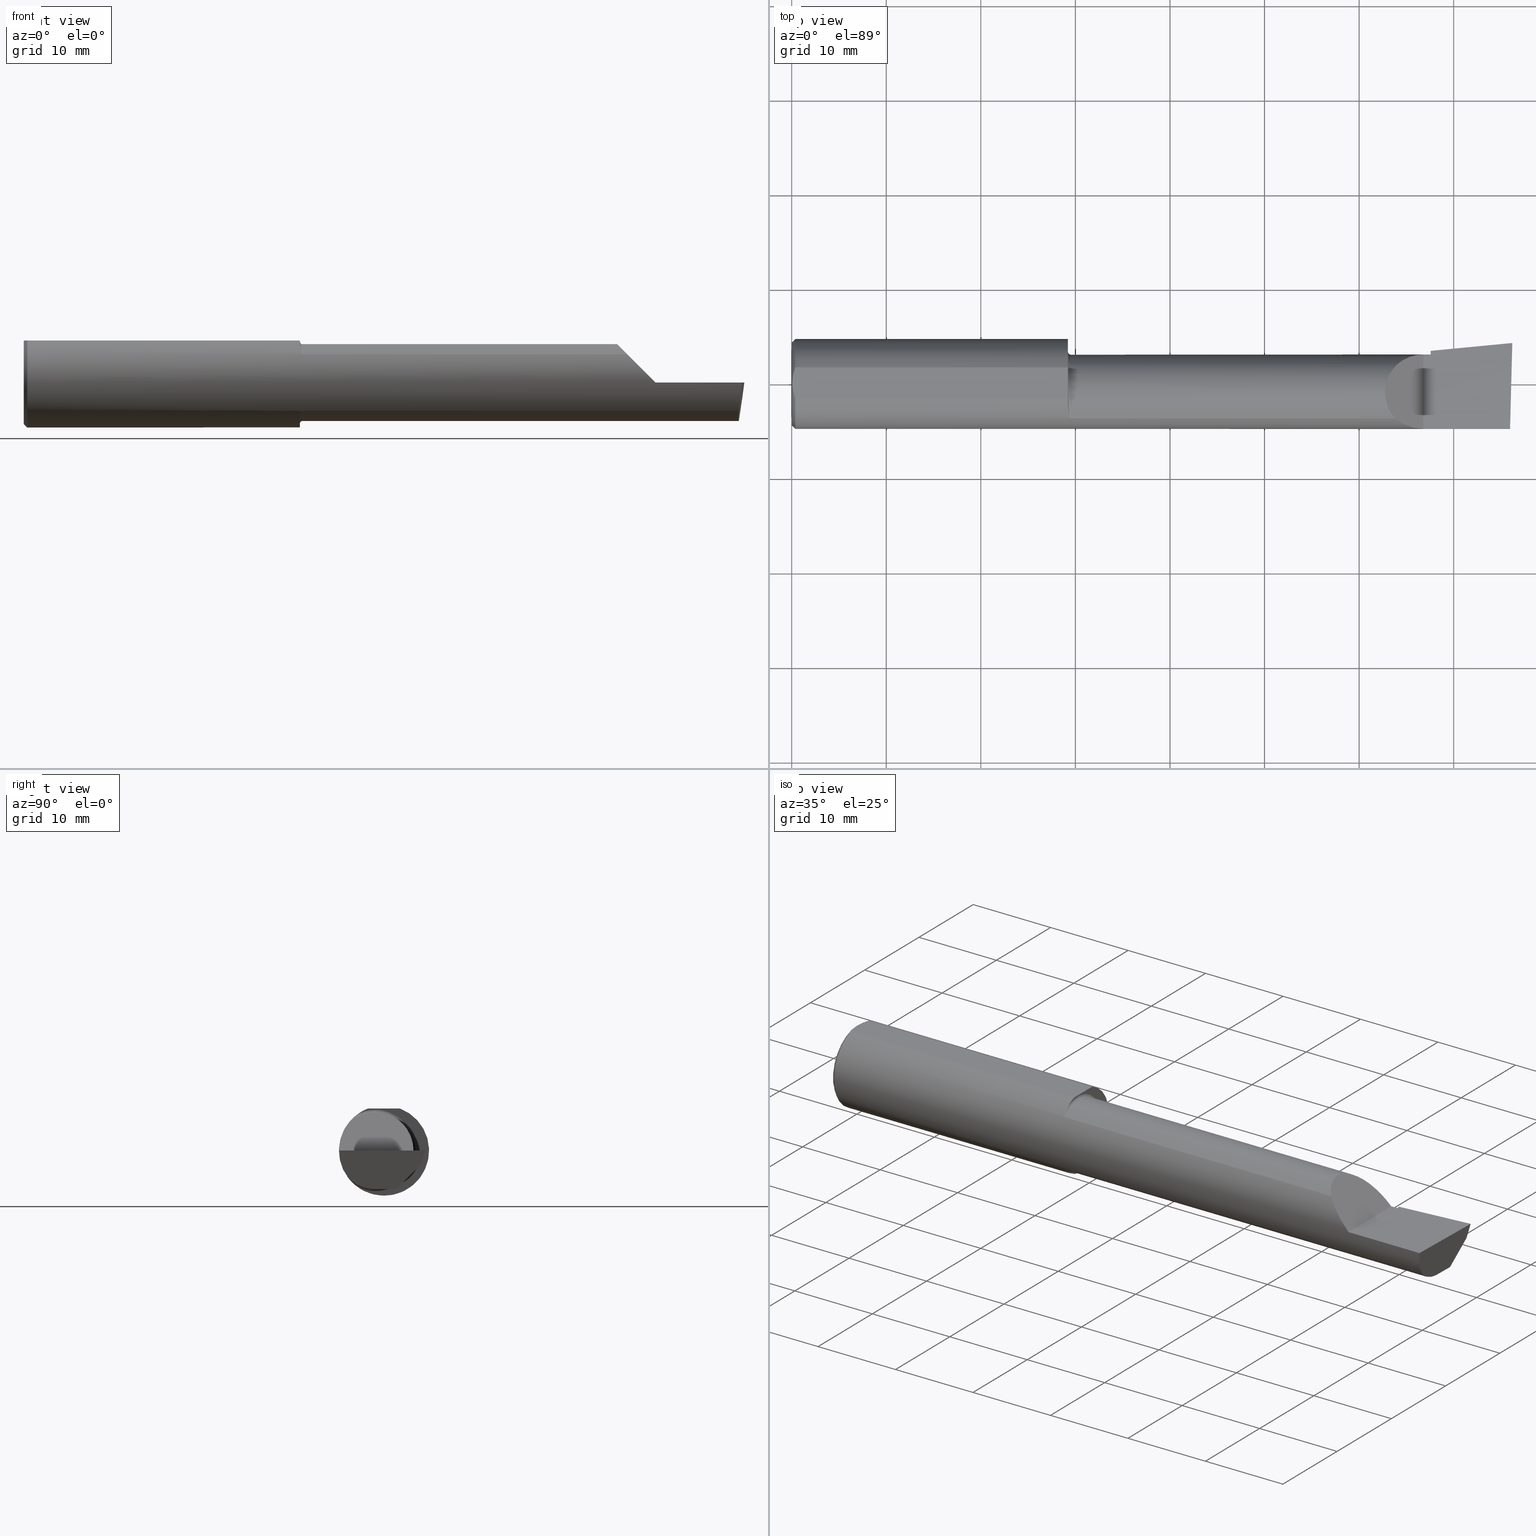
[diagram: canonical four-view strip — front | top / right | iso, engineering-drawing reading convention]
A machine part, canonical four-view strip (front | top / right | iso — engineering-drawing reading convention). The complete STEP part file that produces these views, byte-faithful:
ISO-10303-21;
HEADER;
FILE_DESCRIPTION (( 'STEP AP203' ),
    '1' );
FILE_NAME ('217534-B3601800.STEP',
    '2024-04-26T22:33:33',
    ( '' ),
    ( '' ),
    'SwSTEP 2.0',
    'SolidWorks 2022',
    '' );
FILE_SCHEMA (( 'CONFIG_CONTROL_DESIGN' ));
ENDSEC;

DATA;
#1 = CARTESIAN_POINT ( 'NONE',  ( 2.973833329693936545, -0.07789060880782658347, -0.1600499999999999146 ) ) ;
#2 = CIRCLE ( 'NONE', #478, 0.1600499999999999146 ) ;
#3 = EDGE_LOOP ( 'NONE', ( #440, #95, #236, #605, #196 ) ) ;
#4 = CARTESIAN_POINT ( 'NONE',  ( 0.01499999999999999424, 0.000000000000000000, 0.000000000000000000 ) ) ;
#5 = B_SPLINE_CURVE_WITH_KNOTS ( 'NONE', 3,
 ( #565, #140, #30, #34, #359, #465, #229, #321, #415, #214, #185, #450, #136, #560 ),
 .UNSPECIFIED., .F., .F.,
 ( 4, 2, 2, 2, 2, 2, 4 ),
 ( 0.0006605532644857246925, 0.001446564801351223669, 0.001839570569783973699, 0.002036073454000349690, 0.002134324896108538011, 0.002183450617162631738, 0.002232576338216725898 ),
 .UNSPECIFIED. ) ;
#6 = CARTESIAN_POINT ( 'NONE',  ( 2.992127980275564259, 0.1514633278254527426, -0.06000000000000001166 ) ) ;
#7 = EDGE_CURVE ( 'NONE', #287, #353, #276, .T. ) ;
#8 = ORIENTED_EDGE ( 'NONE', *, *, #434, .F. ) ;
#9 = CARTESIAN_POINT ( 'NONE',  ( 2.991169618080469661, 0.05430702260361124772, -0.1600499999999999701 ) ) ;
#10 = CIRCLE ( 'NONE', #109, 0.1600500000000000533 ) ;
#11 = EDGE_LOOP ( 'NONE', ( #8, #227, #442, #397 ) ) ;
#12 = CARTESIAN_POINT ( 'NONE',  ( 1.154992410154055626, -0.1399157128067689548, -0.1246181391956558832 ) ) ;
#13 = CLOSED_SHELL ( 'NONE', ( #195, #294, #123, #574, #619, #338, #506, #569, #330, #604, #147, #159, #385, #83, #457, #170, #74 ) ) ;
#14 = ORIENTED_EDGE ( 'NONE', *, *, #364, .F. ) ;
#15 = DIRECTION ( 'NONE',  ( 0.000000000000000000, 0.000000000000000000, 1.000000000000000000 ) ) ;
#16 = EDGE_CURVE ( 'NONE', #204, #550, #150, .T. ) ;
#17 = ORIENTED_EDGE ( 'NONE', *, *, #105, .T. ) ;
#18 = CARTESIAN_POINT ( 'NONE',  ( 2.629999999999999893, -0.2500000000000000555, -1.592040838891560883E-17 ) ) ;
#19 = FACE_OUTER_BOUND ( 'NONE', #256, .T. ) ;
#20 = VECTOR ( 'NONE', #51, 39.37007874015748143 ) ;
#21 = VERTEX_POINT ( 'NONE', #183 ) ;
#22 = DIRECTION ( 'NONE',  ( -1.415561931153809475E-16, 0.000000000000000000, -1.000000000000000000 ) ) ;
#23 = CARTESIAN_POINT ( 'NONE',  ( 2.992483720199184294, 0.1538199878950239352, -0.05760614975163617230 ) ) ;
#24 = APPROVAL ( #50, 'UNSPECIFIED' ) ;
#25 = EDGE_LOOP ( 'NONE', ( #349, #536, #314, #200 ) ) ;
#26 = CARTESIAN_POINT ( 'NONE',  ( 0.000000000000000000, 0.000000000000000000, 0.000000000000000000 ) ) ;
#27 = CARTESIAN_POINT ( 'NONE',  ( 2.985293537526806595, -0.1873499999999999888, -0.04340998088356423645 ) ) ;
#28 = ORIENTED_EDGE ( 'NONE', *, *, #525, .T. ) ;
#29 = LENGTH_MEASURE_WITH_UNIT ( LENGTH_MEASURE( 0.02539999999999999897 ), #130 );
#30 = CARTESIAN_POINT ( 'NONE',  ( 1.150493306168247853, -0.1180879943980271130, 0.1458023451353276934 ) ) ;
#31 = ORIENTED_EDGE ( 'NONE', *, *, #451, .F. ) ;
#32 = CARTESIAN_POINT ( 'NONE',  ( 2.659999999999999698, 0.02241901528670498314, -0.1600499999999999701 ) ) ;
#33 = VECTOR ( 'NONE', #284, 39.37007874015748854 ) ;
#34 = CARTESIAN_POINT ( 'NONE',  ( 1.152149571221040114, -0.1293863363941691047, 0.1355911774285935012 ) ) ;
#35 = AXIS2_PLACEMENT_3D ( 'NONE', #396, #112, #298 ) ;
#36 = AXIS2_PLACEMENT_3D ( 'NONE', #274, #264, #178 ) ;
#37 = EDGE_CURVE ( 'NONE', #395, #594, #624, .T. ) ;
#38 = DIRECTION ( 'NONE',  ( 1.000000000000000000, 0.000000000000000000, 0.000000000000000000 ) ) ;
#39 = PERSON_AND_ORGANIZATION ( #305, #333 ) ;
#40 = CARTESIAN_POINT ( 'NONE',  ( 1.160000000000000142, -0.03739999999999999575, 0.000000000000000000 ) ) ;
#41 = EDGE_CURVE ( 'NONE', #499, #21, #578, .T. ) ;
#42 = ORIENTED_EDGE ( 'NONE', *, *, #580, .T. ) ;
#43 = APPROVAL_ROLE ( '' ) ;
#44 = DIRECTION ( 'NONE',  ( -1.000000000000000000, -0.000000000000000000, -0.000000000000000000 ) ) ;
#45 = ORIENTED_EDGE ( 'NONE', *, *, #56, .T. ) ;
#46 = DATE_AND_TIME ( #243, #497 ) ;
#47 = LINE ( 'NONE', #197, #118 ) ;
#48 = LOCAL_TIME ( 15, 33, 33.00000000000000000, #90 ) ;
#49 = ORIENTED_EDGE ( 'NONE', *, *, #199, .T. ) ;
#50 = APPROVAL_STATUS ( 'not_yet_approved' ) ;
#51 = DIRECTION ( 'NONE',  ( -1.000000000000000000, 5.691349986800548372E-18, -0.000000000000000000 ) ) ;
#52 = COORDINATED_UNIVERSAL_TIME_OFFSET ( 8, 0, .BEHIND. ) ;
#53 = CARTESIAN_POINT ( 'NONE',  ( 0.01499999999999997863, -0.06597272163553657975, 0.1753499999999999781 ) ) ;
#54 = ORIENTED_EDGE ( 'NONE', *, *, #494, .F. ) ;
#55 = LINE ( 'NONE', #436, #570 ) ;
#56 = EDGE_CURVE ( 'NONE', #550, #360, #102, .T. ) ;
#57 = AXIS2_PLACEMENT_3D ( 'NONE', #504, #453, #125 ) ;
#58 = MANIFOLD_SOLID_BREP ( 'Extrude7', #13 ) ;
#59 = ORIENTED_EDGE ( 'NONE', *, *, #7, .T. ) ;
#60 = DIRECTION ( 'NONE',  ( -1.000000000000000000, -0.000000000000000000, -0.000000000000000000 ) ) ;
#61 = DIRECTION ( 'NONE',  ( -0.09165774897393340337, 0.9519021185660614393, -0.2923717047227301080 ) ) ;
#62 = DIRECTION ( 'NONE',  ( -1.000000000000000000, 5.691349986800549142E-18, -0.000000000000000000 ) ) ;
#63 = CARTESIAN_POINT ( 'NONE',  ( 1.150000000000000133, -0.1013606951871667550, -0.1575627873933888867 ) ) ;
#64 = AXIS2_PLACEMENT_3D ( 'NONE', #107, #62, #104 ) ;
#65 = VECTOR ( 'NONE', #80, 39.37007874015748143 ) ;
#66 = ORIENTED_EDGE ( 'NONE', *, *, #190, .F. ) ;
#67 = CARTESIAN_POINT ( 'NONE',  ( 2.659999999999999698, 0.1346188438362105333, -0.01072093908174517711 ) ) ;
#68 = ORIENTED_EDGE ( 'NONE', *, *, #139, .F. ) ;
#69 = FACE_OUTER_BOUND ( 'NONE', #25, .T. ) ;
#70 = CARTESIAN_POINT ( 'NONE',  ( 2.629999999999999893, 0.1226499999999998147, -1.592040838891560883E-17 ) ) ;
#71 = ORIENTED_EDGE ( 'NONE', *, *, #175, .F. ) ;
#72 = FACE_OUTER_BOUND ( 'NONE', #512, .T. ) ;
#73 = CARTESIAN_POINT ( 'NONE',  ( 3.000000000000015543, 0.1706500000000299999, 9.286389026041013029E-14 ) ) ;
#74 = ADVANCED_FACE ( 'NONE', ( #326 ), #585, .F. ) ;
#75 = CIRCLE ( 'NONE', #423, 0.1723499999999996424 ) ;
#76 = VERTEX_POINT ( 'NONE', #164 ) ;
#77 = FACE_OUTER_BOUND ( 'NONE', #472, .T. ) ;
#78 = CARTESIAN_POINT ( 'NONE',  ( 2.659999999999999698, -0.03740000000000000269, 0.000000000000000000 ) ) ;
#79 = ORIENTED_EDGE ( 'NONE', *, *, #614, .F. ) ;
#80 = DIRECTION ( 'NONE',  ( 0.9953961983671787417, 0.09584575252022456415, -1.409044964823803883E-16 ) ) ;
#81 = LINE ( 'NONE', #365, #546 ) ;
#82 = CARTESIAN_POINT ( 'NONE',  ( 2.990625440078235275, -0.1873499999999999888, -6.696573958807120429E-17 ) ) ;
#83 = ADVANCED_FACE ( 'NONE', ( #202 ), #386, .T. ) ;
#84 = VERTEX_POINT ( 'NONE', #603 ) ;
#85 = PERSON_AND_ORGANIZATION_ROLE ( 'design_supplier' ) ;
#86 = LINE ( 'NONE', #552, #207 ) ;
#87 = AXIS2_PLACEMENT_3D ( 'NONE', #456, #398, #350 ) ;
#88 = EDGE_CURVE ( 'NONE', #395, #452, #462, .T. ) ;
#89 = ORIENTED_EDGE ( 'NONE', *, *, #494, .T. ) ;
#90 = COORDINATED_UNIVERSAL_TIME_OFFSET ( 8, 0, .BEHIND. ) ;
#91 = FACE_OUTER_BOUND ( 'NONE', #209, .T. ) ;
#92 = CARTESIAN_POINT ( 'NONE',  ( 2.511965325165093521, -0.1454917112299465853, 0.1180346748349052760 ) ) ;
#93 = PERSON_AND_ORGANIZATION_ROLE ( 'classification_officer' ) ;
#94 = FACE_OUTER_BOUND ( 'NONE', #3, .T. ) ;
#95 = ORIENTED_EDGE ( 'NONE', *, *, #7, .F. ) ;
#96 = PERSON_AND_ORGANIZATION ( #305, #333 ) ;
#97 = LINE ( 'NONE', #289, #20 ) ;
#98 = VECTOR ( 'NONE', #414, 39.37007874015748143 ) ;
#99 = AXIS2_PLACEMENT_3D ( 'NONE', #40, #471, #192 ) ;
#100 = APPROVAL_ROLE ( '' ) ;
#101 = CARTESIAN_POINT ( 'NONE',  ( 0.008244775919947433529, 0.04453482769755864185, 0.1753499999999999504 ) ) ;
#102 =( BOUNDED_CURVE ( )  B_SPLINE_CURVE ( 3, ( #242, #119, #501, #70 ),
 .UNSPECIFIED., .F., .T. ) 
 B_SPLINE_CURVE_WITH_KNOTS ( ( 4, 4 ),
 ( 5.541729662751385455, 7.853981633974482790 ),
 .UNSPECIFIED. ) 
 CURVE ( )  GEOMETRIC_REPRESENTATION_ITEM ( )  RATIONAL_B_SPLINE_CURVE ( ( 1.000000000000000000, 0.6019254882129718709, 0.6019254882129718709, 1.000000000000000000 ) ) 
 REPRESENTATION_ITEM ( '' )  );
#103 = B_SPLINE_CURVE_WITH_KNOTS ( 'NONE', 3,
 ( #388, #205, #346, #543, #394, #297, #584, #12, #292, #163, #384, #339, #111, #63 ),
 .UNSPECIFIED., .F., .F.,
 ( 4, 2, 2, 2, 2, 2, 4 ),
 ( 1.967643395620002325E-07, 5.001319782656137654E-05, 9.982963131356075023E-05, 0.0001994624982875594840, 0.0003987282322355602585, 0.0007972597001315618074, 0.001594322635923565989 ),
 .UNSPECIFIED. ) ;
#104 = DIRECTION ( 'NONE',  ( -5.691349986800548372E-18, -1.000000000000000000, 0.000000000000000000 ) ) ;
#105 = EDGE_CURVE ( 'NONE', #21, #353, #115, .T. ) ;
#106 = ORIENTED_EDGE ( 'NONE', *, *, #553, .F. ) ;
#107 = CARTESIAN_POINT ( 'NONE',  ( 0.000000000000000000, -0.03739999999999998881, 0.000000000000000000 ) ) ;
#108 = EDGE_CURVE ( 'NONE', #499, #425, #5, .T. ) ;
#109 = AXIS2_PLACEMENT_3D ( 'NONE', #562, #464, #402 ) ;
#110 = ORIENTED_EDGE ( 'NONE', *, *, #16, .F. ) ;
#111 = CARTESIAN_POINT ( 'NONE',  ( 1.150000000000000355, -0.1099295023601660481, -0.1520504436074701926 ) ) ;
#112 = DIRECTION ( 'NONE',  ( -1.000000000000000000, -0.000000000000000000, -0.000000000000000000 ) ) ;
#113 = PRODUCT_RELATED_PRODUCT_CATEGORY ( 'detail', '', ( #273 ) ) ;
#114 = CARTESIAN_POINT ( 'NONE',  ( 3.011712141217648409, 0.1533490680423131858, -0.06000000000000001166 ) ) ;
#115 = CIRCLE ( 'NONE', #36, 0.1873499999999999888 ) ;
#116 = ORIENTED_EDGE ( 'NONE', *, *, #553, .T. ) ;
#117 = PLANE ( 'NONE',  #87 ) ;
#118 = VECTOR ( 'NONE', #367, 39.37007874015748143 ) ;
#119 = CARTESIAN_POINT ( 'NONE',  ( 2.402393788885675008, -0.02584108761840274437, 0.2276062111143224709 ) ) ;
#120 = ORIENTED_EDGE ( 'NONE', *, *, #218, .F. ) ;
#121 = FACE_OUTER_BOUND ( 'NONE', #611, .T. ) ;
#122 = DIRECTION ( 'NONE',  ( -1.000000000000000000, 5.691349986800549142E-18, 0.000000000000000000 ) ) ;
#123 = ADVANCED_FACE ( 'NONE', ( #308 ), #132, .T. ) ;
#124 = ORIENTED_EDGE ( 'NONE', *, *, #323, .T. ) ;
#125 = DIRECTION ( 'NONE',  ( 0.000000000000000000, 0.000000000000000000, -1.000000000000000000 ) ) ;
#126 =( BOUNDED_CURVE ( )  B_SPLINE_CURVE ( 3, ( #577, #372, #1, #332 ),
 .UNSPECIFIED., .F., .F. ) 
 B_SPLINE_CURVE_WITH_KNOTS ( ( 4, 4 ),
 ( 5.751779107031520510, 6.493234751459723064 ),
 .UNSPECIFIED. ) 
 CURVE ( )  GEOMETRIC_REPRESENTATION_ITEM ( )  RATIONAL_B_SPLINE_CURVE ( ( 1.000000000000000000, 0.9547092712975350226, 0.9547092712975350226, 1.000000000000000000 ) ) 
 REPRESENTATION_ITEM ( '' )  );
#127 = DIRECTION ( 'NONE',  ( 1.000000000000000000, 0.000000000000000000, 0.000000000000000000 ) ) ;
#128 = VECTOR ( 'NONE', #592, 39.37007874015748854 ) ;
#129 = ORIENTED_EDGE ( 'NONE', *, *, #403, .T. ) ;
#130 =( LENGTH_UNIT ( ) NAMED_UNIT ( * ) SI_UNIT ( $, .METRE. ) );
#131 = APPROVAL_PERSON_ORGANIZATION ( #377, #157, #475 ) ;
#132 = PLANE ( 'NONE',  #155 ) ;
#133 = VECTOR ( 'NONE', #246, 39.37007874015748854 ) ;
#134 = EDGE_LOOP ( 'NONE', ( #17, #42, #598, #469 ) ) ;
#135 = CARTESIAN_POINT ( 'NONE',  ( 2.977223734188810145, -0.1454917112299468074, -0.1180346748349050540 ) ) ;
#136 = CARTESIAN_POINT ( 'NONE',  ( 1.159343186359710121, -0.1454917112302233917, 0.1180346748345658947 ) ) ;
#137 = CC_DESIGN_DATE_AND_TIME_ASSIGNMENT ( #46, #288, ( #523 ) ) ;
#138 = ORIENTED_EDGE ( 'NONE', *, *, #299, .T. ) ;
#139 = EDGE_CURVE ( 'NONE', #425, #550, #86, .T. ) ;
#140 = CARTESIAN_POINT ( 'NONE',  ( 1.150000000000000133, -0.1100056335683322478, 0.1520014681335473961 ) ) ;
#141 = VERTEX_POINT ( 'NONE', #517 ) ;
#142 = AXIS2_PLACEMENT_3D ( 'NONE', #361, #454, #514 ) ;
#143 = ORIENTED_EDGE ( 'NONE', *, *, #538, .F. ) ;
#144 = PERSON_AND_ORGANIZATION ( #305, #333 ) ;
#145 = CC_DESIGN_PERSON_AND_ORGANIZATION_ASSIGNMENT ( #144, #430, ( #523 ) ) ;
#146 = DIRECTION ( 'NONE',  ( -1.000000000000000000, -0.000000000000000000, -0.000000000000000000 ) ) ;
#147 = ADVANCED_FACE ( 'NONE', ( #19 ), #466, .F. ) ;
#148 = APPROVAL_DATE_TIME ( #282, #157 ) ;
#149 = FACE_OUTER_BOUND ( 'NONE', #544, .T. ) ;
#150 =( BOUNDED_CURVE ( )  B_SPLINE_CURVE ( 3, ( #417, #572, #526, #92 ),
 .UNSPECIFIED., .F., .T. ) 
 B_SPLINE_CURVE_WITH_KNOTS ( ( 4, 4 ),
 ( 4.712388980384689674, 5.393970886271887366 ),
 .UNSPECIFIED. ) 
 CURVE ( )  GEOMETRIC_REPRESENTATION_ITEM ( )  RATIONAL_B_SPLINE_CURVE ( ( 1.000000000000000000, 0.9616603987079549443, 0.9616603987079549443, 1.000000000000000000 ) ) 
 REPRESENTATION_ITEM ( '' )  );
#151 = PERSON_AND_ORGANIZATION ( #305, #333 ) ;
#152 = CARTESIAN_POINT ( 'NONE',  ( 0.003000000000000172234, 0.01127363201155565098, 0.1753499999999999781 ) ) ;
#153 = AXIS2_PLACEMENT_3D ( 'NONE', #429, #335, #528 ) ;
#154 = CC_DESIGN_SECURITY_CLASSIFICATION ( #571, ( #301 ) ) ;
#155 = AXIS2_PLACEMENT_3D ( 'NONE', #182, #122, #411 ) ;
#156 = CARTESIAN_POINT ( 'NONE',  ( 0.003000000000000171800, -0.01126410975715119375, 0.1753500000000000059 ) ) ;
#157 = APPROVAL ( #324, 'UNSPECIFIED' ) ;
#158 = LINE ( 'NONE', #184, #540 ) ;
#159 = ADVANCED_FACE ( 'NONE', ( #399 ), #511, .T. ) ;
#160 = CARTESIAN_POINT ( 'NONE',  ( 3.000188977433814852, 0.1711105994646683337, 0.001440373173037440713 ) ) ;
#161 = VERTEX_POINT ( 'NONE', #171 ) ;
#162 = DIRECTION ( 'NONE',  ( 0.000000000000000000, 0.6963153109074925462, 0.7177360153954948085 ) ) ;
#163 = CARTESIAN_POINT ( 'NONE',  ( 1.152858161161656181, -0.1330631366558205908, -0.1319833113027339688 ) ) ;
#164 = CARTESIAN_POINT ( 'NONE',  ( 0.01499999999999999424, 0.000000000000000000, -0.1873499999999999888 ) ) ;
#165 = VERTEX_POINT ( 'NONE', #318 ) ;
#166 = CARTESIAN_POINT ( 'NONE',  ( 1.160000000000000142, -0.1454917112299473902, 0.1180346748349042768 ) ) ;
#167 = AXIS2_PLACEMENT_3D ( 'NONE', #174, #127, #508 ) ;
#168 = VERTEX_POINT ( 'NONE', #73 ) ;
#169 = DIRECTION ( 'NONE',  ( -0.000000000000000000, 1.000000000000000000, -0.000000000000000000 ) ) ;
#170 = ADVANCED_FACE ( 'NONE', ( #312 ), #355, .F. ) ;
#171 = CARTESIAN_POINT ( 'NONE',  ( 2.659999999999999698, -0.03740000000000000269, -0.1600499999999999701 ) ) ;
#172 = ORIENTED_EDGE ( 'NONE', *, *, #270, .T. ) ;
#173 = PLANE ( 'NONE',  #340 ) ;
#174 = CARTESIAN_POINT ( 'NONE',  ( 0.01499999999999999424, 0.000000000000000000, 0.000000000000000000 ) ) ;
#175 = EDGE_CURVE ( 'NONE', #541, #334, #374, .T. ) ;
#176 = ORIENTED_EDGE ( 'NONE', *, *, #323, .F. ) ;
#177 = FACE_OUTER_BOUND ( 'NONE', #393, .T. ) ;
#178 = DIRECTION ( 'NONE',  ( 0.000000000000000000, 1.000000000000000000, 0.000000000000000000 ) ) ;
#179 = AXIS2_PLACEMENT_3D ( 'NONE', #608, #351, #459 ) ;
#180 = ORIENTED_EDGE ( 'NONE', *, *, #291, .T. ) ;
#181 = DIRECTION ( 'NONE',  ( 0.02617694830787068924, 0.9996573249755572599, -3.650474420803454266E-18 ) ) ;
#182 = CARTESIAN_POINT ( 'NONE',  ( 2.659999999999999698, 0.1379117236128365731, 0.000000000000000000 ) ) ;
#183 = CARTESIAN_POINT ( 'NONE',  ( 1.150000000000000133, -0.1013606951871667550, -0.1575627873933888867 ) ) ;
#184 = CARTESIAN_POINT ( 'NONE',  ( 2.659999999999999698, -0.03740000000000000269, -0.1600499999999999701 ) ) ;
#185 = CARTESIAN_POINT ( 'NONE',  ( 1.157921033727479010, -0.1445976381173504355, 0.1191292621734205831 ) ) ;
#186 = CALENDAR_DATE ( 2024, 26, 4 ) ;
#187 = CARTESIAN_POINT ( 'NONE',  ( 0.01499999999999999424, 0.000000000000000000, 0.000000000000000000 ) ) ;
#188 = ORIENTED_EDGE ( 'NONE', *, *, #403, .F. ) ;
#189 = CARTESIAN_POINT ( 'NONE',  ( 2.659999999999999698, 0.1010446066476775734, -0.07900565447499385829 ) ) ;
#190 = EDGE_CURVE ( 'NONE', #486, #613, #81, .T. ) ;
#191 = DIRECTION ( 'NONE',  ( 0.000000000000000000, -1.000000000000000000, 0.000000000000000000 ) ) ;
#192 = DIRECTION ( 'NONE',  ( 0.000000000000000000, -1.000000000000000000, 0.000000000000000000 ) ) ;
#193 = APPLICATION_PROTOCOL_DEFINITION ( 'international standard', 'config_control_design', 1994, #241 ) ;
#194 = CARTESIAN_POINT ( 'NONE',  ( 1.150000000000000133, 0.06597272163553680180, 0.1753499999999999781 ) ) ;
#195 = ADVANCED_FACE ( 'NONE', ( #271 ), #435, .T. ) ;
#196 = ORIENTED_EDGE ( 'NONE', *, *, #211, .F. ) ;
#197 = CARTESIAN_POINT ( 'NONE',  ( 0.000000000000000000, -0.06597272163553671853, 0.1753499999999999226 ) ) ;
#198 = AXIS2_PLACEMENT_3D ( 'NONE', #597, #315, #505 ) ;
#199 = EDGE_CURVE ( 'NONE', #486, #161, #518, .T. ) ;
#200 = ORIENTED_EDGE ( 'NONE', *, *, #502, .T. ) ;
#201 = DIRECTION ( 'NONE',  ( 0.7071067811865390240, 0.000000000000000000, -0.7071067811865560104 ) ) ;
#202 = FACE_OUTER_BOUND ( 'NONE', #11, .T. ) ;
#203 = PLANE ( 'NONE',  #379 ) ;
#204 = VERTEX_POINT ( 'NONE', #407 ) ;
#205 = CARTESIAN_POINT ( 'NONE',  ( 1.159335809113331450, -0.1454917112299472515, -0.1180346748349044989 ) ) ;
#206 = VECTOR ( 'NONE', #169, 39.37007874015748143 ) ;
#207 = VECTOR ( 'NONE', #224, 39.37007874015748143 ) ;
#208 = LINE ( 'NONE', #160, #226 ) ;
#209 = EDGE_LOOP ( 'NONE', ( #138, #216, #413, #79 ) ) ;
#210 = DIRECTION ( 'NONE',  ( -0.06894566448119621160, 0.7160281025913034503, -0.6946583704589934793 ) ) ;
#211 = EDGE_CURVE ( 'NONE', #345, #141, #47, .T. ) ;
#212 = EDGE_LOOP ( 'NONE', ( #617, #180 ) ) ;
#213 = CARTESIAN_POINT ( 'NONE',  ( 1.150000000000000133, 0.2373500000000000332, 0.1753499999999999504 ) ) ;
#214 = CARTESIAN_POINT ( 'NONE',  ( 1.157580800664965714, -0.1442412736056278566, 0.1195608849622512987 ) ) ;
#215 = AXIS2_PLACEMENT_3D ( 'NONE', #4, #60, #15 ) ;
#216 = ORIENTED_EDGE ( 'NONE', *, *, #416, .T. ) ;
#217 = LINE ( 'NONE', #18, #206 ) ;
#218 = EDGE_CURVE ( 'NONE', #345, #499, #532, .T. ) ;
#219 = ORIENTED_EDGE ( 'NONE', *, *, #139, .T. ) ;
#220 = DIRECTION ( 'NONE',  ( -1.000000000000000000, -0.000000000000000000, -0.000000000000000000 ) ) ;
#221 = DIRECTION ( 'NONE',  ( 0.000000000000000000, -1.000000000000000000, 0.000000000000000000 ) ) ;
#222 = APPROVAL ( #483, 'UNSPECIFIED' ) ;
#223 = ORIENTED_EDGE ( 'NONE', *, *, #467, .T. ) ;
#224 = DIRECTION ( 'NONE',  ( 1.000000000000000000, -5.691349986800549142E-18, 0.000000000000000000 ) ) ;
#225 = EDGE_CURVE ( 'NONE', #541, #594, #126, .T. ) ;
#226 = VECTOR ( 'NONE', #248, 39.37007874015748854 ) ;
#227 = ORIENTED_EDGE ( 'NONE', *, *, #485, .T. ) ;
#228 = LOCAL_TIME ( 15, 33, 33.00000000000000000, #285 ) ;
#229 = CARTESIAN_POINT ( 'NONE',  ( 1.154997648858496984, -0.1399294360413342042, 0.1246027428089586525 ) ) ;
#230 = AXIS2_PLACEMENT_3D ( 'NONE', #529, #474, #191 ) ;
#231 = CARTESIAN_POINT ( 'NONE',  ( 0.004093196532652217806, -0.02240707710020815174, 0.1753499999999999504 ) ) ;
#232 = ORIENTED_EDGE ( 'NONE', *, *, #434, .T. ) ;
#233 = CALENDAR_DATE ( 2024, 26, 4 ) ;
#234 = EDGE_CURVE ( 'NONE', #360, #383, #473, .T. ) ;
#235 = LINE ( 'NONE', #189, #133 ) ;
#236 = ORIENTED_EDGE ( 'NONE', *, *, #356, .F. ) ;
#237 = DATE_AND_TIME ( #366, #228 ) ;
#238 = AXIS2_PLACEMENT_3D ( 'NONE', #477, #626, #327 ) ;
#239 = DIRECTION ( 'NONE',  ( -1.000000000000000000, 5.691349986800549142E-18, 0.000000000000000000 ) ) ;
#240 = VECTOR ( 'NONE', #551, 39.37007874015748143 ) ;
#241 = APPLICATION_CONTEXT ( 'configuration controlled 3d designs of mechanical parts and assemblies' ) ;
#242 = CARTESIAN_POINT ( 'NONE',  ( 2.511965325165093521, -0.1454917112299465853, 0.1180346748349052760 ) ) ;
#243 = CALENDAR_DATE ( 2024, 26, 4 ) ;
#244 = DIRECTION ( 'NONE',  ( 0.000000000000000000, 0.000000000000000000, 1.000000000000000000 ) ) ;
#245 = APPROVAL_DATE_TIME ( #527, #222 ) ;
#246 = DIRECTION ( 'NONE',  ( -3.962974135542378101E-18, -0.6963153109074925462, -0.7177360153954946975 ) ) ;
#247 = ORIENTED_EDGE ( 'NONE', *, *, #451, .T. ) ;
#248 = DIRECTION ( 'NONE',  ( 0.1240019227989397066, 0.3022330132596644514, 0.9451342385281306102 ) ) ;
#249 = ORIENTED_EDGE ( 'NONE', *, *, #538, .T. ) ;
#250 = CARTESIAN_POINT ( 'NONE',  ( 2.659999999999999698, 0.1226500000000000368, 3.563723795045366070E-16 ) ) ;
#251 = ORIENTED_EDGE ( 'NONE', *, *, #485, .F. ) ;
#252 = LINE ( 'NONE', #67, #331 ) ;
#253 = CARTESIAN_POINT ( 'NONE',  ( 2.659999999999999698, 0.1379117236128416524, 3.521522804332839197E-16 ) ) ;
#254 = VECTOR ( 'NONE', #426, 39.37007874015748143 ) ;
#255 = CC_DESIGN_APPROVAL ( #157, ( #571 ) ) ;
#256 = EDGE_LOOP ( 'NONE', ( #581, #172, #223, #319 ) ) ;
#257 = CARTESIAN_POINT ( 'NONE',  ( 0.000000000000000000, 0.000000000000000000, -0.1723499999999996424 ) ) ;
#258 = ORIENTED_EDGE ( 'NONE', *, *, #16, .T. ) ;
#259 = LINE ( 'NONE', #461, #520 ) ;
#260 = CARTESIAN_POINT ( 'NONE',  ( 2.972657716785287896, -0.1026153499216722609, -0.1643501480114537283 ) ) ;
#261 = EDGE_CURVE ( 'NONE', #557, #515, #623, .T. ) ;
#262 = ORIENTED_EDGE ( 'NONE', *, *, #347, .F. ) ;
#263 = CARTESIAN_POINT ( 'NONE',  ( 1.909999999999999920, -0.1454917112299468074, -0.1180346748349050540 ) ) ;
#264 = DIRECTION ( 'NONE',  ( 1.000000000000000000, -5.691349986800549142E-18, 0.000000000000000000 ) ) ;
#265 = APPROVAL_PERSON_ORGANIZATION ( #522, #24, #43 ) ;
#266 = ORIENTED_EDGE ( 'NONE', *, *, #225, .T. ) ;
#267 = CARTESIAN_POINT ( 'NONE',  ( 3.000000000000000444, -0.2500000000000000555, -6.829619984160658046E-17 ) ) ;
#268 = DIRECTION ( 'NONE',  ( -1.000000000000000000, 5.691349986800549142E-18, -0.000000000000000000 ) ) ;
#269 = EDGE_LOOP ( 'NONE', ( #521, #446, #409, #427, #54 ) ) ;
#270 = EDGE_CURVE ( 'NONE', #425, #84, #400, .T. ) ;
#271 = FACE_OUTER_BOUND ( 'NONE', #269, .T. ) ;
#272 = LINE ( 'NONE', #263, #98 ) ;
#273 = PRODUCT ( '217534-B3601800', '217534-B3601800', '', ( #530 ) ) ;
#274 = CARTESIAN_POINT ( 'NONE',  ( 1.150000000000000133, 0.000000000000000000, 0.000000000000000000 ) ) ;
#275 = VECTOR ( 'NONE', #545, 39.37007874015748854 ) ;
#276 = LINE ( 'NONE', #281, #495 ) ;
#277 = SECURITY_CLASSIFICATION_LEVEL ( 'unclassified' ) ;
#278 = APPROVAL_PERSON_ORGANIZATION ( #96, #222, #100 ) ;
#279 = CARTESIAN_POINT ( 'NONE',  ( 0.003000000000000218638, 2.334609607045083916E-17, 0.1753499999999999781 ) ) ;
#280 = EDGE_CURVE ( 'NONE', #287, #76, #328, .T. ) ;
#281 = CARTESIAN_POINT ( 'NONE',  ( 0.000000000000000000, 0.06597272163553677404, 0.1753499999999999226 ) ) ;
#282 = DATE_AND_TIME ( #233, #48 ) ;
#283 = DIRECTION ( 'NONE',  ( -5.691349986800549142E-18, -1.000000000000000000, 0.000000000000000000 ) ) ;
#284 = DIRECTION ( 'NONE',  ( -0.02617694830787069618, -0.9996573249755572599, 0.000000000000000000 ) ) ;
#285 = COORDINATED_UNIVERSAL_TIME_OFFSET ( 8, 0, .BEHIND. ) ;
#286 = PLANE ( 'NONE',  #238 ) ;
#287 = VERTEX_POINT ( 'NONE', #568 ) ;
#288 = DATE_TIME_ROLE ( 'creation_date' ) ;
#289 = CARTESIAN_POINT ( 'NONE',  ( 3.000000000000000444, -0.03740000000000000269, -0.1600499999999999701 ) ) ;
#290 = CARTESIAN_POINT ( 'NONE',  ( 1.150000000000000133, 0.000000000000000000, 0.000000000000000000 ) ) ;
#291 = EDGE_CURVE ( 'NONE', #463, #486, #235, .T. ) ;
#292 = CARTESIAN_POINT ( 'NONE',  ( 1.154404192622242142, -0.1382376748423456703, -0.1264781021717274467 ) ) ;
#293 = CARTESIAN_POINT ( 'NONE',  ( 2.629999999999999893, 0.1226499999999998147, -1.592040838891560883E-17 ) ) ;
#294 = ADVANCED_FACE ( 'NONE', ( #91 ), #573, .T. ) ;
#295 = FACE_OUTER_BOUND ( 'NONE', #316, .T. ) ;
#296 = DIRECTION ( 'NONE',  ( 0.000000000000000000, 0.2936076258024057917, 0.9559260233253795702 ) ) ;
#297 = CARTESIAN_POINT ( 'NONE',  ( 1.156664569472227955, -0.1431262185210695759, -0.1208975608635225463 ) ) ;
#298 = DIRECTION ( 'NONE',  ( 0.000000000000000000, 0.000000000000000000, 1.000000000000000000 ) ) ;
#299 = EDGE_CURVE ( 'NONE', #383, #479, #325, .T. ) ;
#300 = CARTESIAN_POINT ( 'NONE',  ( 3.009953961983673487, 0.1716084575252022348, -6.829619984160658046E-17 ) ) ;
#301 = PRODUCT_DEFINITION_FORMATION_WITH_SPECIFIED_SOURCE ( 'ANY', '', #273, .NOT_KNOWN. ) ;
#302 = VECTOR ( 'NONE', #556, 39.37007874015748854 ) ;
#303 = ORIENTED_EDGE ( 'NONE', *, *, #234, .T. ) ;
#304 = DIRECTION ( 'NONE',  ( 0.000000000000000000, 1.000000000000000000, 0.000000000000000000 ) ) ;
#305 = PERSON ( 'UNSPECIFIED', 'UNSPECIFIED', 'UNSPECIFIED', ('UNSPECIFIED'), ('UNSPECIFIED'), ('UNSPECIFIED') ) ;
#306 = EDGE_LOOP ( 'NONE', ( #309, #621, #66, #401, #336, #251 ) ) ;
#307 = CARTESIAN_POINT ( 'NONE',  ( 0.000000000000000000, 0.000000000000000000, 0.000000000000000000 ) ) ;
#308 = FACE_OUTER_BOUND ( 'NONE', #341, .T. ) ;
#309 = ORIENTED_EDGE ( 'NONE', *, *, #88, .F. ) ;
#310 = CARTESIAN_POINT ( 'NONE',  ( 2.511965325165093521, -0.1454917112299465853, 0.1180346748349052760 ) ) ;
#311 = CC_DESIGN_DATE_AND_TIME_ASSIGNMENT ( #237, #625, ( #571 ) ) ;
#312 = FACE_OUTER_BOUND ( 'NONE', #212, .T. ) ;
#313 = EDGE_CURVE ( 'NONE', #141, #515, #476, .T. ) ;
#314 = ORIENTED_EDGE ( 'NONE', *, *, #347, .T. ) ;
#315 = DIRECTION ( 'NONE',  ( -1.000000000000000000, 5.691349986800549142E-18, -0.000000000000000000 ) ) ;
#316 = EDGE_LOOP ( 'NONE', ( #507, #249, #455, #219, #45, #303, #343, #14, #49, #262 ) ) ;
#317 = CARTESIAN_POINT ( 'NONE',  ( 0.003000000000000218638, 2.334609607045083916E-17, 0.1753499999999999781 ) ) ;
#318 = CARTESIAN_POINT ( 'NONE',  ( 2.659999999999999698, 0.1194830407249523607, -0.06000000000000001166 ) ) ;
#319 = ORIENTED_EDGE ( 'NONE', *, *, #41, .F. ) ;
#320 = DATE_AND_TIME ( #428, #610 ) ;
#321 = CARTESIAN_POINT ( 'NONE',  ( 1.156216587669451235, -0.1423502170013176138, 0.1218111458006537057 ) ) ;
#322 = DIRECTION ( 'NONE',  ( 5.691349986800549142E-18, 1.000000000000000000, -8.056458378187594471E-34 ) ) ;
#323 = EDGE_CURVE ( 'NONE', #334, #204, #576, .T. ) ;
#324 = APPROVAL_STATUS ( 'not_yet_approved' ) ;
#325 = LINE ( 'NONE', #373, #596 ) ;
#326 = FACE_OUTER_BOUND ( 'NONE', #503, .T. ) ;
#327 = DIRECTION ( 'NONE',  ( 0.000000000000000000, 1.000000000000000000, -1.438723400918613551E-16 ) ) ;
#328 = CIRCLE ( 'NONE', #392, 0.1873499999999999888 ) ;
#329 = CARTESIAN_POINT ( 'NONE',  ( 0.000000000000000000, 0.000000000000000000, 0.000000000000000000 ) ) ;
#330 = ADVANCED_FACE ( 'NONE', ( #149 ), #422, .F. ) ;
#331 = VECTOR ( 'NONE', #443, 39.37007874015748854 ) ;
#332 = CARTESIAN_POINT ( 'NONE',  ( 2.974893613600466669, -0.03740000000000000269, -0.1600499999999999701 ) ) ;
#333 = ORGANIZATION ( 'UNSPECIFIED', 'UNSPECIFIED', '' ) ;
#334 = VERTEX_POINT ( 'NONE', #537 ) ;
#335 = DIRECTION ( 'NONE',  ( 1.000000000000000000, 0.000000000000000000, 0.000000000000000000 ) ) ;
#336 = ORIENTED_EDGE ( 'NONE', *, *, #375, .F. ) ;
#337 = CARTESIAN_POINT ( 'NONE',  ( 0.01499999999999999424, 0.06597272163553677404, 0.1753499999999999226 ) ) ;
#338 = ADVANCED_FACE ( 'NONE', ( #94 ), #286, .F. ) ;
#339 = CARTESIAN_POINT ( 'NONE',  ( 1.150483388365424187, -0.1180160148311112794, -0.1458664675357409513 ) ) ;
#340 = AXIS2_PLACEMENT_3D ( 'NONE', #267, #22, #500 ) ;
#341 = EDGE_LOOP ( 'NONE', ( #389, #357, #588 ) ) ;
#342 = FACE_OUTER_BOUND ( 'NONE', #306, .T. ) ;
#343 = ORIENTED_EDGE ( 'NONE', *, *, #614, .T. ) ;
#344 = LINE ( 'NONE', #114, #275 ) ;
#345 = VERTEX_POINT ( 'NONE', #531 ) ;
#346 = CARTESIAN_POINT ( 'NONE',  ( 1.158770022656896659, -0.1452078353828897828, -0.1183847404910792489 ) ) ;
#347 = EDGE_CURVE ( 'NONE', #594, #161, #97, .T. ) ;
#348 = AXIS2_PLACEMENT_3D ( 'NONE', #260, #498, #590 ) ;
#349 = ORIENTED_EDGE ( 'NONE', *, *, #439, .F. ) ;
#350 = DIRECTION ( 'NONE',  ( -0.7071067811865516806, 0.000000000000000000, 0.7071067811865432429 ) ) ;
#351 = DIRECTION ( 'NONE',  ( 1.000000000000000000, -5.691349986800549142E-18, 0.000000000000000000 ) ) ;
#352 = CC_DESIGN_PERSON_AND_ORGANIZATION_ASSIGNMENT ( #39, #421, ( #273 ) ) ;
#353 = VERTEX_POINT ( 'NONE', #194 ) ;
#354 = CARTESIAN_POINT ( 'NONE',  ( 2.974893613600466669, -0.03740000000000000269, -0.1600499999999999701 ) ) ;
#355 = PLANE ( 'NONE',  #142 ) ;
#356 = EDGE_CURVE ( 'NONE', #515, #287, #458, .T. ) ;
#357 = ORIENTED_EDGE ( 'NONE', *, *, #190, .T. ) ;
#358 = DIRECTION ( 'NONE',  ( -1.000000000000000000, -0.000000000000000000, -0.000000000000000000 ) ) ;
#359 = CARTESIAN_POINT ( 'NONE',  ( 1.152845212421890642, -0.1330145888620369587, 0.1320338710448769326 ) ) ;
#360 = VERTEX_POINT ( 'NONE', #293 ) ;
#361 = CARTESIAN_POINT ( 'NONE',  ( 2.659999999999999698, 0.1379117236128365731, 0.000000000000000000 ) ) ;
#362 = CARTESIAN_POINT ( 'NONE',  ( 2.974910817315466360, -0.03674301662998785689, -0.1600499999999999701 ) ) ;
#363 = COORDINATED_UNIVERSAL_TIME_OFFSET ( 8, 0, .BEHIND. ) ;
#364 = EDGE_CURVE ( 'NONE', #486, #463, #2, .T. ) ;
#365 = CARTESIAN_POINT ( 'NONE',  ( 2.659999999999999698, 0.1010446066476775734, -0.07900565447499385829 ) ) ;
#366 = CALENDAR_DATE ( 2024, 26, 4 ) ;
#367 = DIRECTION ( 'NONE',  ( -1.000000000000000000, -0.000000000000000000, -0.000000000000000000 ) ) ;
#368 = UNCERTAINTY_MEASURE_WITH_UNIT (LENGTH_MEASURE( 1.000000000000000082E-05 ), #606, 'distance_accuracy_value', 'NONE');
#369 = CIRCLE ( 'NONE', #215, 0.1873499999999999888 ) ;
#370 = AXIS2_PLACEMENT_3D ( 'NONE', #26, #220, #406 ) ;
#371 = ORIENTED_EDGE ( 'NONE', *, *, #105, .F. ) ;
#372 = CARTESIAN_POINT ( 'NONE',  ( 2.974646882977781015, -0.1156304438478839430, -0.1453804992321580114 ) ) ;
#373 = CARTESIAN_POINT ( 'NONE',  ( 2.659999999999999698, -0.2500000000000000555, -2.016709418237695393E-17 ) ) ;
#374 =( BOUNDED_CURVE ( )  B_SPLINE_CURVE ( 3, ( #563, #404, #27, #82 ),
 .UNSPECIFIED., .F., .T. ) 
 B_SPLINE_CURVE_WITH_KNOTS ( ( 4, 4 ),
 ( 0.6791649766275641431, 1.360746882514759726 ),
 .UNSPECIFIED. ) 
 CURVE ( )  GEOMETRIC_REPRESENTATION_ITEM ( )  RATIONAL_B_SPLINE_CURVE ( ( 1.000000000000000000, 0.9616603987079550553, 0.9616603987079550553, 1.000000000000000000 ) ) 
 REPRESENTATION_ITEM ( '' )  );
#375 = EDGE_CURVE ( 'NONE', #165, #463, #390, .T. ) ;
#376 = ORIENTED_EDGE ( 'NONE', *, *, #627, .F. ) ;
#377 = PERSON_AND_ORGANIZATION ( #305, #333 ) ;
#378 = CARTESIAN_POINT ( 'NONE',  ( 0.003000000000000218638, 2.334609607045083916E-17, 0.1753499999999999781 ) ) ;
#379 = AXIS2_PLACEMENT_3D ( 'NONE', #587, #210, #162 ) ;
#380 = CARTESIAN_POINT ( 'NONE',  ( 0.008227791779583793277, -0.04447712204611815184, 0.1753499999999999781 ) ) ;
#381 = AXIS2_PLACEMENT_3D ( 'NONE', #78, #268, #221 ) ;
#382 = CC_DESIGN_PERSON_AND_ORGANIZATION_ASSIGNMENT ( #470, #93, ( #571 ) ) ;
#383 = VERTEX_POINT ( 'NONE', #250 ) ;
#384 = CARTESIAN_POINT ( 'NONE',  ( 1.152152469637250709, -0.1294082664154932449, -0.1355718222394677042 ) ) ;
#385 = ADVANCED_FACE ( 'NONE', ( #295 ), #490, .T. ) ;
#386 = PLANE ( 'NONE',  #481 ) ;
#387 = ORIENTED_EDGE ( 'NONE', *, *, #37, .F. ) ;
#388 = CARTESIAN_POINT ( 'NONE',  ( 1.160000000000000142, -0.1454917112299473902, -0.1180346748349042768 ) ) ;
#389 = ORIENTED_EDGE ( 'NONE', *, *, #199, .F. ) ;
#390 = LINE ( 'NONE', #539, #128 ) ;
#391 = VECTOR ( 'NONE', #447, 39.37007874015748854 ) ;
#392 = AXIS2_PLACEMENT_3D ( 'NONE', #187, #44, #244 ) ;
#393 = EDGE_LOOP ( 'NONE', ( #547, #110, #116 ) ) ;
#394 = CARTESIAN_POINT ( 'NONE',  ( 1.157567572594822014, -0.1442269357022595289, -0.1195781817710020872 ) ) ;
#395 = VERTEX_POINT ( 'NONE', #492 ) ;
#396 = CARTESIAN_POINT ( 'NONE',  ( 0.000000000000000000, 0.000000000000000000, 0.000000000000000000 ) ) ;
#397 = ORIENTED_EDGE ( 'NONE', *, *, #627, .T. ) ;
#398 = DIRECTION ( 'NONE',  ( -0.7071067811865433539, 0.000000000000000000, -0.7071067811865517916 ) ) ;
#399 = FACE_OUTER_BOUND ( 'NONE', #134, .T. ) ;
#400 = CIRCLE ( 'NONE', #99, 0.1600499999999997758 ) ;
#401 = ORIENTED_EDGE ( 'NONE', *, *, #291, .F. ) ;
#402 = DIRECTION ( 'NONE',  ( 0.000000000000000000, -1.000000000000000000, 0.000000000000000000 ) ) ;
#403 = EDGE_CURVE ( 'NONE', #431, #557, #488, .T. ) ;
#404 = CARTESIAN_POINT ( 'NONE',  ( 2.980648201915111262, -0.1728409665178088084, -0.08432347972837168915 ) ) ;
#405 = ORIENTED_EDGE ( 'NONE', *, *, #88, .T. ) ;
#406 = DIRECTION ( 'NONE',  ( 0.000000000000000000, 0.000000000000000000, 1.000000000000000000 ) ) ;
#407 = CARTESIAN_POINT ( 'NONE',  ( 2.629999999999999893, -0.1873499999999999888, -1.592040838891560883E-17 ) ) ;
#408 = PRODUCT_DEFINITION_SHAPE ( 'NONE', 'NONE',  #523 ) ;
#409 = ORIENTED_EDGE ( 'NONE', *, *, #356, .T. ) ;
#410 = DIRECTION ( 'NONE',  ( 1.000000000000000000, 0.000000000000000000, 0.000000000000000000 ) ) ;
#411 = DIRECTION ( 'NONE',  ( -5.691349986800549142E-18, -1.000000000000000000, 0.000000000000000000 ) ) ;
#412 = APPLICATION_CONTEXT ( 'configuration controlled 3d designs of mechanical parts and assemblies' ) ;
#413 = ORIENTED_EDGE ( 'NONE', *, *, #375, .T. ) ;
#414 = DIRECTION ( 'NONE',  ( -1.000000000000000000, 5.691349986800549142E-18, -0.000000000000000000 ) ) ;
#415 = CARTESIAN_POINT ( 'NONE',  ( 1.156674049009441818, -0.1431412424162813724, 0.1208797671938516005 ) ) ;
#416 = EDGE_CURVE ( 'NONE', #479, #165, #252, .T. ) ;
#417 = CARTESIAN_POINT ( 'NONE',  ( 2.629999999999999893, -0.1873499999999999888, -1.592040838891560883E-17 ) ) ;
#418 = APPLICATION_PROTOCOL_DEFINITION ( 'international standard', 'config_control_design', 1994, #412 ) ;
#419 = CARTESIAN_POINT ( 'NONE',  ( 5.044671737413194975E-32, -0.1873499999999999610, 3.563723795045361633E-16 ) ) ;
#420 = ORIENTED_EDGE ( 'NONE', *, *, #313, .T. ) ;
#421 = PERSON_AND_ORGANIZATION_ROLE ( 'design_owner' ) ;
#422 = PLANE ( 'NONE',  #153 ) ;
#423 = AXIS2_PLACEMENT_3D ( 'NONE', #307, #358, #612 ) ;
#424 = CC_DESIGN_APPROVAL ( #222, ( #523 ) ) ;
#425 = VERTEX_POINT ( 'NONE', #166 ) ;
#426 = DIRECTION ( 'NONE',  ( 1.000000000000000000, -5.691349986800549142E-18, 0.000000000000000000 ) ) ;
#427 = ORIENTED_EDGE ( 'NONE', *, *, #280, .T. ) ;
#428 = CALENDAR_DATE ( 2024, 26, 4 ) ;
#429 = CARTESIAN_POINT ( 'NONE',  ( 0.000000000000000000, 0.000000000000000000, 0.000000000000000000 ) ) ;
#430 = PERSON_AND_ORGANIZATION_ROLE ( 'creator' ) ;
#431 = VERTEX_POINT ( 'NONE', #257 ) ;
#432 = CARTESIAN_POINT ( 'NONE',  ( 0.01499999999999999424, 2.294375778202566330E-17, 0.1873499999999999888 ) ) ;
#433 = ADVANCED_BREP_SHAPE_REPRESENTATION ( '217534-B3601800', ( #58, #579 ), #468 ) ;
#434 = EDGE_CURVE ( 'NONE', #452, #168, #208, .T. ) ;
#435 = CONICAL_SURFACE ( 'NONE', #167, 0.1873499999999999888, 0.7853981633974602694 ) ;
#436 = CARTESIAN_POINT ( 'NONE',  ( 0.01499999999999999424, 0.000000000000000000, -0.1873499999999999888 ) ) ;
#437 = LOCAL_TIME ( 15, 33, 33.00000000000000000, #52 ) ;
#438 = DIMENSIONAL_EXPONENTS ( 1.000000000000000000, 0.000000000000000000, 0.000000000000000000, 0.000000000000000000, 0.000000000000000000, 0.000000000000000000, 0.000000000000000000 ) ;
#439 = EDGE_CURVE ( 'NONE', #395, #613, #542, .T. ) ;
#440 = ORIENTED_EDGE ( 'NONE', *, *, #580, .F. ) ;
#441 = CARTESIAN_POINT ( 'NONE',  ( 0.01125230581755091823, 0.05532998191409932431, 0.1753500000000000059 ) ) ;
#442 = ORIENTED_EDGE ( 'NONE', *, *, #416, .F. ) ;
#443 = DIRECTION ( 'NONE',  ( -1.671023757235063182E-18, -0.2936076258024058472, -0.9559260233253797923 ) ) ;
#444 = CARTESIAN_POINT ( 'NONE',  ( 2.659999999999999698, 0.1028057716897400331, -0.07719031082256673504 ) ) ;
#445 = AXIS2_PLACEMENT_3D ( 'NONE', #449, #555, #410 ) ;
#446 = ORIENTED_EDGE ( 'NONE', *, *, #261, .T. ) ;
#447 = DIRECTION ( 'NONE',  ( -0.9953961983671800740, -0.09584575252021028391, 0.000000000000000000 ) ) ;
#448 = ORIENTED_EDGE ( 'NONE', *, *, #595, .F. ) ;
#449 = CARTESIAN_POINT ( 'NONE',  ( 3.000000000000000444, -0.03740000000000000269, -0.1600499999999999701 ) ) ;
#450 = CARTESIAN_POINT ( 'NONE',  ( 1.158780002058964254, -0.1452129146512420033, 0.1183784924451689036 ) ) ;
#451 = EDGE_CURVE ( 'NONE', #76, #141, #369, .T. ) ;
#452 = VERTEX_POINT ( 'NONE', #6 ) ;
#453 = DIRECTION ( 'NONE',  ( 1.000000000000000000, 0.000000000000000000, 0.000000000000000000 ) ) ;
#454 = DIRECTION ( 'NONE',  ( -1.000000000000000000, 5.691349986800549142E-18, 0.000000000000000000 ) ) ;
#455 = ORIENTED_EDGE ( 'NONE', *, *, #270, .F. ) ;
#456 = CARTESIAN_POINT ( 'NONE',  ( 2.629999999999999893, -0.2500000000000000555, -1.592040838891560883E-17 ) ) ;
#457 = ADVANCED_FACE ( 'NONE', ( #342 ), #203, .T. ) ;
#458 = B_SPLINE_CURVE_WITH_KNOTS ( 'NONE', 3,
 ( #378, #152, #535, #101, #441, #337 ),
 .UNSPECIFIED., .F., .F.,
 ( 4, 2, 4 ),
 ( 0.003480013901590607410, 0.004330767971208085432, 0.005181522040825563453 ),
 .UNSPECIFIED. ) ;
#459 = DIRECTION ( 'NONE',  ( 5.691349986800549142E-18, 1.000000000000000000, 0.000000000000000000 ) ) ;
#460 = ORIENTED_EDGE ( 'NONE', *, *, #211, .T. ) ;
#461 = CARTESIAN_POINT ( 'NONE',  ( 2.988992440003207296, -0.2497117568972559154, -6.673801155297142441E-17 ) ) ;
#462 = LINE ( 'NONE', #23, #302 ) ;
#463 = VERTEX_POINT ( 'NONE', #444 ) ;
#464 = DIRECTION ( 'NONE',  ( -1.000000000000000000, 5.691349986800549142E-18, -0.000000000000000000 ) ) ;
#465 = CARTESIAN_POINT ( 'NONE',  ( 1.154402240695038939, -0.1382337250035453602, 0.1264828452200225661 ) ) ;
#466 = TOROIDAL_SURFACE ( 'NONE', #198, 0.1700499999999998124, 0.01000000000000002102 ) ;
#467 = EDGE_CURVE ( 'NONE', #84, #21, #103, .T. ) ;
#468 =( GEOMETRIC_REPRESENTATION_CONTEXT ( 3 ) GLOBAL_UNCERTAINTY_ASSIGNED_CONTEXT ( ( #368 ) ) GLOBAL_UNIT_ASSIGNED_CONTEXT ( ( #606, #564, #567 ) ) REPRESENTATION_CONTEXT ( 'NONE', 'WORKASPACE' ) );
#469 = ORIENTED_EDGE ( 'NONE', *, *, #41, .T. ) ;
#470 = PERSON_AND_ORGANIZATION ( #305, #333 ) ;
#471 = DIRECTION ( 'NONE',  ( -1.000000000000000000, 5.691349986800549142E-18, -0.000000000000000000 ) ) ;
#472 = EDGE_LOOP ( 'NONE', ( #143, #586, #124, #258, #68, #509, #120, #460, #31, #489, #59, #371, #601 ) ) ;
#473 = LINE ( 'NONE', #620, #254 ) ;
#474 = DIRECTION ( 'NONE',  ( -1.000000000000000000, 5.691349986800549142E-18, -0.000000000000000000 ) ) ;
#475 = APPROVAL_ROLE ( '' ) ;
#476 = B_SPLINE_CURVE_WITH_KNOTS ( 'NONE', 3,
 ( #53, #582, #380, #231, #156, #279 ),
 .UNSPECIFIED., .F., .F.,
 ( 4, 2, 4 ),
 ( 0.001779942938356815062, 0.002629978419973711019, 0.003480013901590607410 ),
 .UNSPECIFIED. ) ;
#477 = CARTESIAN_POINT ( 'NONE',  ( 3.000000000000000444, 0.2373500000000000332, 0.1753499999999999504 ) ) ;
#478 = AXIS2_PLACEMENT_3D ( 'NONE', #589, #493, #496 ) ;
#479 = VERTEX_POINT ( 'NONE', #253 ) ;
#480 = APPROVAL_DATE_TIME ( #320, #24 ) ;
#481 = AXIS2_PLACEMENT_3D ( 'NONE', #300, #61, #296 ) ;
#482 = CARTESIAN_POINT ( 'NONE',  ( 2.659999999999999698, 0.1379117236128365731, 0.000000000000000000 ) ) ;
#483 = APPROVAL_STATUS ( 'not_yet_approved' ) ;
#484 = DIRECTION ( 'NONE',  ( 0.7071067811865390240, 8.659560562355036396E-17, 0.7071067811865560104 ) ) ;
#485 = EDGE_CURVE ( 'NONE', #452, #165, #344, .T. ) ;
#486 = VERTEX_POINT ( 'NONE', #487 ) ;
#487 = CARTESIAN_POINT ( 'NONE',  ( 2.659999999999999698, 0.04400172171466199683, -0.1378033461200732224 ) ) ;
#488 = CIRCLE ( 'NONE', #35, 0.1723499999999996424 ) ;
#489 = ORIENTED_EDGE ( 'NONE', *, *, #280, .F. ) ;
#490 = CYLINDRICAL_SURFACE ( 'NONE', #64, 0.1600499999999999146 ) ;
#491 = CC_DESIGN_APPROVAL ( #24, ( #301 ) ) ;
#492 = CARTESIAN_POINT ( 'NONE',  ( 2.977259974483423832, 0.05296767626088492303, -0.1600499999999999701 ) ) ;
#493 = DIRECTION ( 'NONE',  ( 1.000000000000000000, -5.691349986800549142E-18, 0.000000000000000000 ) ) ;
#494 = EDGE_CURVE ( 'NONE', #431, #76, #55, .T. ) ;
#495 = VECTOR ( 'NONE', #38, 39.37007874015748143 ) ;
#496 = DIRECTION ( 'NONE',  ( 0.000000000000000000, -1.000000000000000000, -1.776356839400250465E-15 ) ) ;
#497 = LOCAL_TIME ( 15, 33, 33.00000000000000000, #628 ) ;
#498 = DIRECTION ( 'NONE',  ( -0.9922060308645471727, 0.02598182930469084689, 0.1218693434051534991 ) ) ;
#499 = VERTEX_POINT ( 'NONE', #583 ) ;
#500 = DIRECTION ( 'NONE',  ( -1.000000000000000000, 0.000000000000000000, 1.415561931153809475E-16 ) ) ;
#501 = CARTESIAN_POINT ( 'NONE',  ( 2.467758842172327771, 0.1226499999999999119, 0.1622411578276702349 ) ) ;
#502 = EDGE_CURVE ( 'NONE', #161, #613, #158, .T. ) ;
#503 = EDGE_LOOP ( 'NONE', ( #266, #387, #405, #232, #448, #71 ) ) ;
#504 = CARTESIAN_POINT ( 'NONE',  ( 0.01499999999999999424, 0.000000000000000000, 0.000000000000000000 ) ) ;
#505 = DIRECTION ( 'NONE',  ( -5.691349986800549142E-18, -1.000000000000000000, 0.000000000000000000 ) ) ;
#506 = ADVANCED_FACE ( 'NONE', ( #72 ), #173, .F. ) ;
#507 = ORIENTED_EDGE ( 'NONE', *, *, #225, .F. ) ;
#508 = DIRECTION ( 'NONE',  ( 0.000000000000000000, 0.000000000000000000, -1.000000000000000000 ) ) ;
#509 = ORIENTED_EDGE ( 'NONE', *, *, #108, .F. ) ;
#510 = PLANE ( 'NONE',  #445 ) ;
#511 = PLANE ( 'NONE',  #179 ) ;
#512 = EDGE_LOOP ( 'NONE', ( #176, #566, #376, #591, #554, #106 ) ) ;
#513 = CARTESIAN_POINT ( 'NONE',  ( 0.000000000000000000, 2.202527268266512578E-17, 0.1723499999999996424 ) ) ;
#514 = DIRECTION ( 'NONE',  ( -5.691349986800549142E-18, -1.000000000000000000, 0.000000000000000000 ) ) ;
#515 = VERTEX_POINT ( 'NONE', #317 ) ;
#516 = PERSON_AND_ORGANIZATION ( #305, #333 ) ;
#517 = CARTESIAN_POINT ( 'NONE',  ( 0.01499999999999997863, -0.06597272163553657975, 0.1753499999999999781 ) ) ;
#518 = CIRCLE ( 'NONE', #381, 0.1600500000000000533 ) ;
#519 = AXIS2_PLACEMENT_3D ( 'NONE', #482, #239, #283 ) ;
#520 = VECTOR ( 'NONE', #181, 39.37007874015748854 ) ;
#521 = ORIENTED_EDGE ( 'NONE', *, *, #525, .F. ) ;
#522 = PERSON_AND_ORGANIZATION ( #305, #333 ) ;
#523 = PRODUCT_DEFINITION ( 'UNKNOWN', '', #301, #616 ) ;
#524 = DIRECTION ( 'NONE',  ( 0.000000000000000000, 1.000000000000000000, 0.000000000000000000 ) ) ;
#525 = EDGE_CURVE ( 'NONE', #557, #431, #75, .T. ) ;
#526 = CARTESIAN_POINT ( 'NONE',  ( 2.545676520271627385, -0.1728409665178087251, 0.08432347972837181405 ) ) ;
#527 = DATE_AND_TIME ( #186, #437 ) ;
#528 = DIRECTION ( 'NONE',  ( 0.000000000000000000, 0.000000000000000000, -1.000000000000000000 ) ) ;
#529 = CARTESIAN_POINT ( 'NONE',  ( 1.150000000000000133, -0.03739999999999999575, 0.000000000000000000 ) ) ;
#530 = MECHANICAL_CONTEXT ( 'NONE', #241, 'mechanical' ) ;
#531 = CARTESIAN_POINT ( 'NONE',  ( 1.150000000000000133, -0.06597272163553659363, 0.1753499999999999781 ) ) ;
#532 = CIRCLE ( 'NONE', #593, 0.1873499999999999888 ) ;
#533 = CONICAL_SURFACE ( 'NONE', #57, 0.1873499999999999888, 0.7853981633974602694 ) ;
#534 = DIRECTION ( 'NONE',  ( 1.000000000000000000, 0.000000000000000000, 0.000000000000000000 ) ) ;
#535 = CARTESIAN_POINT ( 'NONE',  ( 0.004115035183746283340, 0.02255629470626750385, 0.1753499999999999781 ) ) ;
#536 = ORIENTED_EDGE ( 'NONE', *, *, #37, .T. ) ;
#537 = CARTESIAN_POINT ( 'NONE',  ( 2.990625440078235275, -0.1873499999999999888, -6.696573958807120429E-17 ) ) ;
#538 = EDGE_CURVE ( 'NONE', #541, #84, #272, .T. ) ;
#539 = CARTESIAN_POINT ( 'NONE',  ( 2.659999999999999698, 0.1010446066476775734, -0.07900565447499385829 ) ) ;
#540 = VECTOR ( 'NONE', #304, 39.37007874015748143 ) ;
#541 = VERTEX_POINT ( 'NONE', #135 ) ;
#542 = LINE ( 'NONE', #9, #391 ) ;
#543 = CARTESIAN_POINT ( 'NONE',  ( 1.157909242887170453, -0.1445870704379424998, -0.1191421054870949042 ) ) ;
#544 = EDGE_LOOP ( 'NONE', ( #129, #28 ) ) ;
#545 = DIRECTION ( 'NONE',  ( -0.9953961983671800740, -0.09584575252021031166, 0.000000000000000000 ) ) ;
#546 = VECTOR ( 'NONE', #600, 39.37007874015748854 ) ;
#547 = ORIENTED_EDGE ( 'NONE', *, *, #56, .F. ) ;
#548 = LINE ( 'NONE', #213, #240 ) ;
#549 = CC_DESIGN_PERSON_AND_ORGANIZATION_ASSIGNMENT ( #516, #85, ( #301 ) ) ;
#550 = VERTEX_POINT ( 'NONE', #310 ) ;
#551 = DIRECTION ( 'NONE',  ( -5.691349986800549142E-18, -1.000000000000000000, 1.438723400918613551E-16 ) ) ;
#552 = CARTESIAN_POINT ( 'NONE',  ( 1.909999999999999920, -0.1454917112299468074, 0.1180346748349050540 ) ) ;
#553 = EDGE_CURVE ( 'NONE', #204, #360, #217, .T. ) ;
#554 = ORIENTED_EDGE ( 'NONE', *, *, #234, .F. ) ;
#555 = DIRECTION ( 'NONE',  ( -0.000000000000000000, 0.000000000000000000, 1.000000000000000000 ) ) ;
#556 = DIRECTION ( 'NONE',  ( 0.1053106618241840126, 0.6976485211320170299, 0.7086580314005209713 ) ) ;
#557 = VERTEX_POINT ( 'NONE', #513 ) ;
#558 = CARTESIAN_POINT ( 'NONE',  ( 0.8393181374772692438, -0.03739999999999999575, 2.375616991505620205E-16 ) ) ;
#559 = CC_DESIGN_PERSON_AND_ORGANIZATION_ASSIGNMENT ( #151, #575, ( #301 ) ) ;
#560 = CARTESIAN_POINT ( 'NONE',  ( 1.160000000000000142, -0.1454917112299473902, 0.1180346748349042768 ) ) ;
#561 = ORIENTED_EDGE ( 'NONE', *, *, #261, .F. ) ;
#562 = CARTESIAN_POINT ( 'NONE',  ( 2.659999999999999698, -0.03740000000000000269, 0.000000000000000000 ) ) ;
#563 = CARTESIAN_POINT ( 'NONE',  ( 2.977223734188810145, -0.1454917112299468074, -0.1180346748349050540 ) ) ;
#564 =( NAMED_UNIT ( * ) PLANE_ANGLE_UNIT ( ) SI_UNIT ( $, .RADIAN. ) );
#565 = CARTESIAN_POINT ( 'NONE',  ( 1.150000000000000133, -0.1013606951871667550, 0.1575627873933888867 ) ) ;
#566 = ORIENTED_EDGE ( 'NONE', *, *, #595, .T. ) ;
#567 =( NAMED_UNIT ( * ) SI_UNIT ( $, .STERADIAN. ) SOLID_ANGLE_UNIT ( ) );
#568 = CARTESIAN_POINT ( 'NONE',  ( 0.01499999999999999424, 0.06597272163553677404, 0.1753499999999999226 ) ) ;
#569 = ADVANCED_FACE ( 'NONE', ( #177 ), #117, .F. ) ;
#570 = VECTOR ( 'NONE', #201, 39.37007874015748143 ) ;
#571 = SECURITY_CLASSIFICATION ( '', '', #277 ) ;
#572 = CARTESIAN_POINT ( 'NONE',  ( 2.586590019116435268, -0.1873499999999999610, 0.04340998088356424339 ) ) ;
#573 = PLANE ( 'NONE',  #519 ) ;
#574 = ADVANCED_FACE ( 'NONE', ( #69 ), #510, .F. ) ;
#575 = PERSON_AND_ORGANIZATION_ROLE ( 'creator' ) ;
#576 = LINE ( 'NONE', #419, #609 ) ;
#577 = CARTESIAN_POINT ( 'NONE',  ( 2.977223734188810145, -0.1454917112299468074, -0.1180346748349050540 ) ) ;
#578 = CIRCLE ( 'NONE', #230, 0.1700499999999997569 ) ;
#579 = AXIS2_PLACEMENT_3D ( 'NONE', #329, #622, #534 ) ;
#580 = EDGE_CURVE ( 'NONE', #353, #345, #548, .T. ) ;
#581 = ORIENTED_EDGE ( 'NONE', *, *, #108, .T. ) ;
#582 = CARTESIAN_POINT ( 'NONE',  ( 0.01128414053810044074, -0.05542038647445821781, 0.1753499999999999781 ) ) ;
#583 = CARTESIAN_POINT ( 'NONE',  ( 1.150000000000000133, -0.1013606951871667550, 0.1575627873933888867 ) ) ;
#584 = CARTESIAN_POINT ( 'NONE',  ( 1.156208682939483090, -0.1423361566194931982, -0.1218275716760972571 ) ) ;
#585 = PLANE ( 'NONE',  #348 ) ;
#586 = ORIENTED_EDGE ( 'NONE', *, *, #175, .T. ) ;
#587 = CARTESIAN_POINT ( 'NONE',  ( 3.011712141217648409, 0.1533490680423131858, -0.06000000000000001166 ) ) ;
#588 = ORIENTED_EDGE ( 'NONE', *, *, #502, .F. ) ;
#589 = CARTESIAN_POINT ( 'NONE',  ( 2.659999999999999698, -0.03740000000000000269, 0.000000000000000000 ) ) ;
#590 = DIRECTION ( 'NONE',  ( 0.1219104985252889156, 0.000000000000000000, 0.9925410975618670362 ) ) ;
#591 = ORIENTED_EDGE ( 'NONE', *, *, #299, .F. ) ;
#592 = DIRECTION ( 'NONE',  ( -3.962974135542378101E-18, -0.6963153109074925462, -0.7177360153954946975 ) ) ;
#593 = AXIS2_PLACEMENT_3D ( 'NONE', #290, #615, #524 ) ;
#594 = VERTEX_POINT ( 'NONE', #354 ) ;
#595 = EDGE_CURVE ( 'NONE', #334, #168, #259, .T. ) ;
#596 = VECTOR ( 'NONE', #322, 39.37007874015748143 ) ;
#597 = CARTESIAN_POINT ( 'NONE',  ( 1.160000000000000142, -0.03740000000000000269, 0.000000000000000000 ) ) ;
#598 = ORIENTED_EDGE ( 'NONE', *, *, #218, .T. ) ;
#599 = CYLINDRICAL_SURFACE ( 'NONE', #370, 0.1873499999999999888 ) ;
#600 = DIRECTION ( 'NONE',  ( -3.962974135542378101E-18, -0.6963153109074925462, -0.7177360153954946975 ) ) ;
#601 = ORIENTED_EDGE ( 'NONE', *, *, #467, .F. ) ;
#602 = LINE ( 'NONE', #558, #65 ) ;
#603 = CARTESIAN_POINT ( 'NONE',  ( 1.160000000000000142, -0.1454917112299473902, -0.1180346748349042768 ) ) ;
#604 = ADVANCED_FACE ( 'NONE', ( #121 ), #533, .T. ) ;
#605 = ORIENTED_EDGE ( 'NONE', *, *, #313, .F. ) ;
#606 =( CONVERSION_BASED_UNIT ( 'INCH', #29 ) LENGTH_UNIT ( ) NAMED_UNIT ( #438 ) );
#607 = VECTOR ( 'NONE', #484, 39.37007874015748143 ) ;
#608 = CARTESIAN_POINT ( 'NONE',  ( 1.150000000000000133, 0.1326499999999997681, 0.000000000000000000 ) ) ;
#609 = VECTOR ( 'NONE', #146, 39.37007874015748143 ) ;
#610 = LOCAL_TIME ( 15, 33, 33.00000000000000000, #363 ) ;
#611 = EDGE_LOOP ( 'NONE', ( #561, #188, #89, #247, #420 ) ) ;
#612 = DIRECTION ( 'NONE',  ( 0.000000000000000000, 0.000000000000000000, 1.000000000000000000 ) ) ;
#613 = VERTEX_POINT ( 'NONE', #32 ) ;
#614 = EDGE_CURVE ( 'NONE', #383, #463, #10, .T. ) ;
#615 = DIRECTION ( 'NONE',  ( 1.000000000000000000, -5.691349986800549142E-18, 0.000000000000000000 ) ) ;
#616 = DESIGN_CONTEXT ( 'detailed design', #412, 'design' ) ;
#617 = ORIENTED_EDGE ( 'NONE', *, *, #364, .T. ) ;
#618 = SHAPE_DEFINITION_REPRESENTATION ( #408, #433 ) ;
#619 = ADVANCED_FACE ( 'NONE', ( #77 ), #599, .T. ) ;
#620 = CARTESIAN_POINT ( 'NONE',  ( 9.109005653874777379E-19, 0.1226499999999998841, 3.563723795045361633E-16 ) ) ;
#621 = ORIENTED_EDGE ( 'NONE', *, *, #439, .T. ) ;
#622 = DIRECTION ( 'NONE',  ( 0.000000000000000000, 0.000000000000000000, 1.000000000000000000 ) ) ;
#623 = LINE ( 'NONE', #432, #607 ) ;
#624 = LINE ( 'NONE', #362, #33 ) ;
#625 = DATE_TIME_ROLE ( 'classification_date' ) ;
#626 = DIRECTION ( 'NONE',  ( 0.000000000000000000, -1.438723400918613551E-16, -1.000000000000000000 ) ) ;
#627 = EDGE_CURVE ( 'NONE', #479, #168, #602, .T. ) ;
#628 = COORDINATED_UNIVERSAL_TIME_OFFSET ( 8, 0, .BEHIND. ) ;
ENDSEC;
END-ISO-10303-21;
